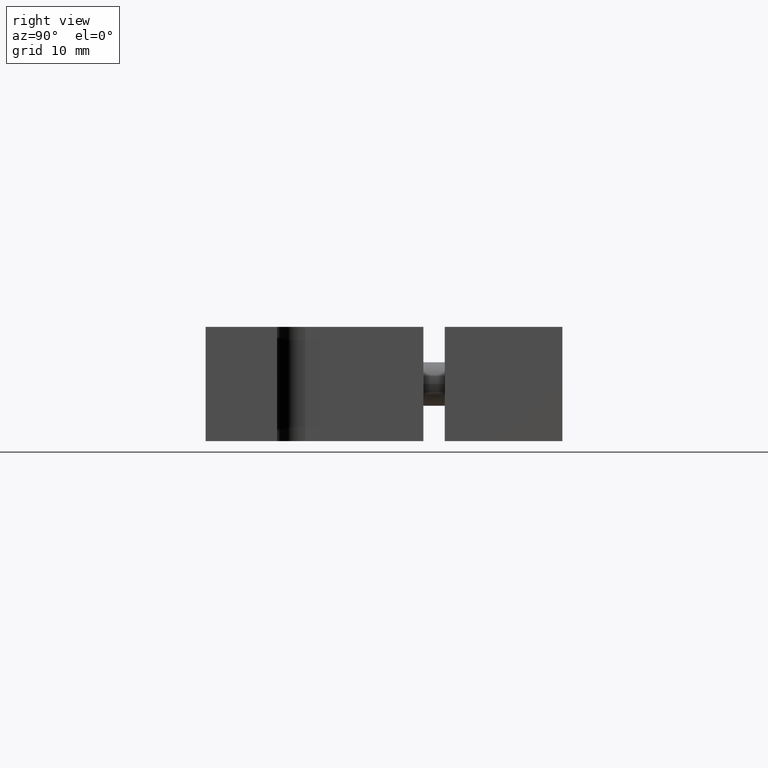
[diagram: clean part render]
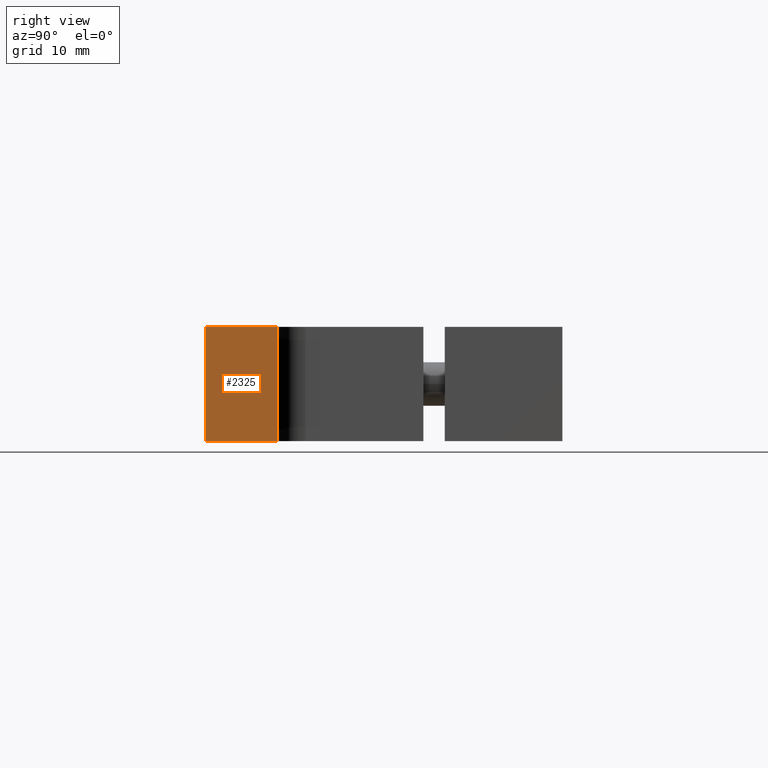
[diagram: same view with one face highlighted and labeled with its STEP entity id]
A machine part, right view. The second image highlights one B-rep face of the part: STEP entity #2325.
In plain terms, the highlighted planar face has unit normal (1, 0, 0).
Its self-contained STEP definition (entity closure, byte-faithful):
#194 = CARTESIAN_POINT ( 'NONE',  ( 1.375000000000000200, -1.000000000000000200, 0.2500000000000000600 ) ) ;
#210 = DIRECTION ( 'NONE',  ( 0.0000000000000000000, 0.0000000000000000000, -1.000000000000000000 ) ) ;
#249 = CARTESIAN_POINT ( 'NONE',  ( 1.375000000000000200, -1.000000000000000200, -0.2500000000000000600 ) ) ;
#283 = CARTESIAN_POINT ( 'NONE',  ( 1.375000000000000200, -0.6875000000000001100, -0.2500000000000000600 ) ) ;
#552 = DIRECTION ( 'NONE',  ( -0.0000000000000000000, 0.0000000000000000000, -1.000000000000000000 ) ) ;
#575 = FACE_OUTER_BOUND ( 'NONE', #4768, .T. ) ;
#677 = VERTEX_POINT ( 'NONE', #194 ) ;
#688 = EDGE_CURVE ( 'NONE', #677, #4403, #2615, .T. ) ;
#1397 = CARTESIAN_POINT ( 'NONE',  ( 1.375000000000000200, -0.6182210772702301200, 0.2500000000000000600 ) ) ;
#1504 = DIRECTION ( 'NONE',  ( 1.000000000000000000, 0.0000000000000000000, 0.0000000000000000000 ) ) ;
#1633 = VECTOR ( 'NONE', #210, 39.37007874015748100 ) ;
#1659 = LINE ( 'NONE', #283, #4590 ) ;
#1881 = LINE ( 'NONE', #2433, #2755 ) ;
#1884 = VECTOR ( 'NONE', #4839, 39.37007874015748100 ) ;
#1902 = EDGE_CURVE ( 'NONE', #677, #2671, #4921, .T. ) ;
#1944 = AXIS2_PLACEMENT_3D ( 'NONE', #3788, #1504, #4175 ) ;
#2266 = EDGE_CURVE ( 'NONE', #4403, #3864, #1659, .T. ) ;
#2325 = ADVANCED_FACE ( 'NONE', ( #575 ), #4152, .T. ) ;
#2433 = CARTESIAN_POINT ( 'NONE',  ( 1.375000000000000200, -0.6875000000000001100, 0.0000000000000000000 ) ) ;
#2615 = LINE ( 'NONE', #4787, #1633 ) ;
#2671 = VERTEX_POINT ( 'NONE', #3517 ) ;
#2755 = VECTOR ( 'NONE', #552, 39.37007874015748100 ) ;
#2814 = CARTESIAN_POINT ( 'NONE',  ( 1.375000000000000200, -0.6875000000000001100, -0.2500000000000000600 ) ) ;
#2937 = DIRECTION ( 'NONE',  ( -0.0000000000000000000, 1.000000000000000000, 0.0000000000000000000 ) ) ;
#3082 = ORIENTED_EDGE ( 'NONE', *, *, #2266, .T. ) ;
#3099 = ORIENTED_EDGE ( 'NONE', *, *, #688, .T. ) ;
#3517 = CARTESIAN_POINT ( 'NONE',  ( 1.375000000000000200, -0.6875000000000001100, 0.2500000000000000600 ) ) ;
#3788 = CARTESIAN_POINT ( 'NONE',  ( 1.375000000000000200, -0.6875000000000001100, 0.0000000000000000000 ) ) ;
#3864 = VERTEX_POINT ( 'NONE', #2814 ) ;
#4152 = PLANE ( 'NONE',  #1944 ) ;
#4175 = DIRECTION ( 'NONE',  ( 0.0000000000000000000, 0.0000000000000000000, -1.000000000000000000 ) ) ;
#4182 = ORIENTED_EDGE ( 'NONE', *, *, #1902, .F. ) ;
#4403 = VERTEX_POINT ( 'NONE', #249 ) ;
#4555 = ORIENTED_EDGE ( 'NONE', *, *, #4709, .F. ) ;
#4590 = VECTOR ( 'NONE', #2937, 39.37007874015748100 ) ;
#4709 = EDGE_CURVE ( 'NONE', #2671, #3864, #1881, .T. ) ;
#4768 = EDGE_LOOP ( 'NONE', ( #3082, #4555, #4182, #3099 ) ) ;
#4787 = CARTESIAN_POINT ( 'NONE',  ( 1.375000000000000200, -1.000000000000000200, 0.0000000000000000000 ) ) ;
#4839 = DIRECTION ( 'NONE',  ( -0.0000000000000000000, 1.000000000000000000, 0.0000000000000000000 ) ) ;
#4921 = LINE ( 'NONE', #1397, #1884 ) ;